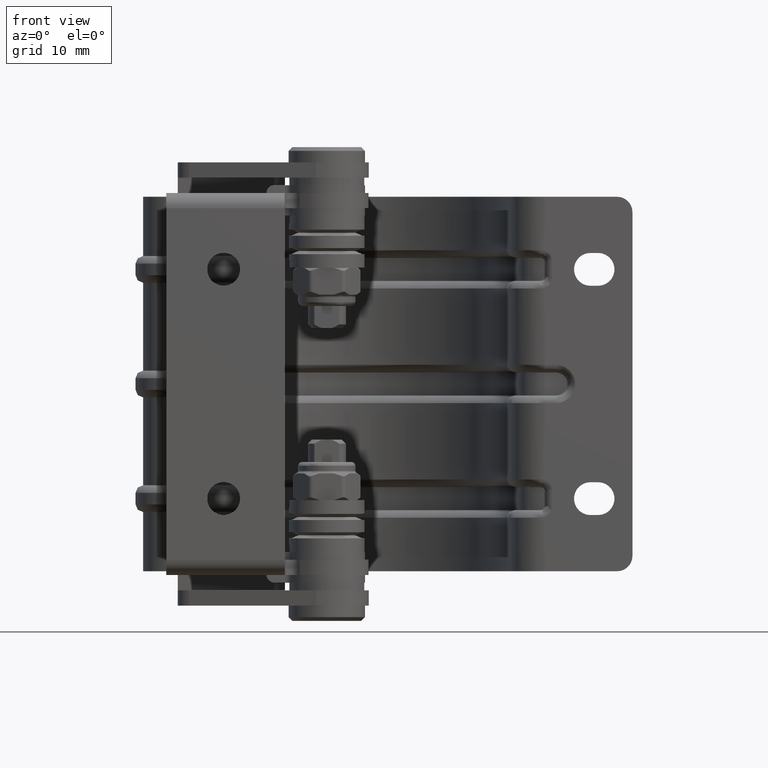
[diagram: clean part render]
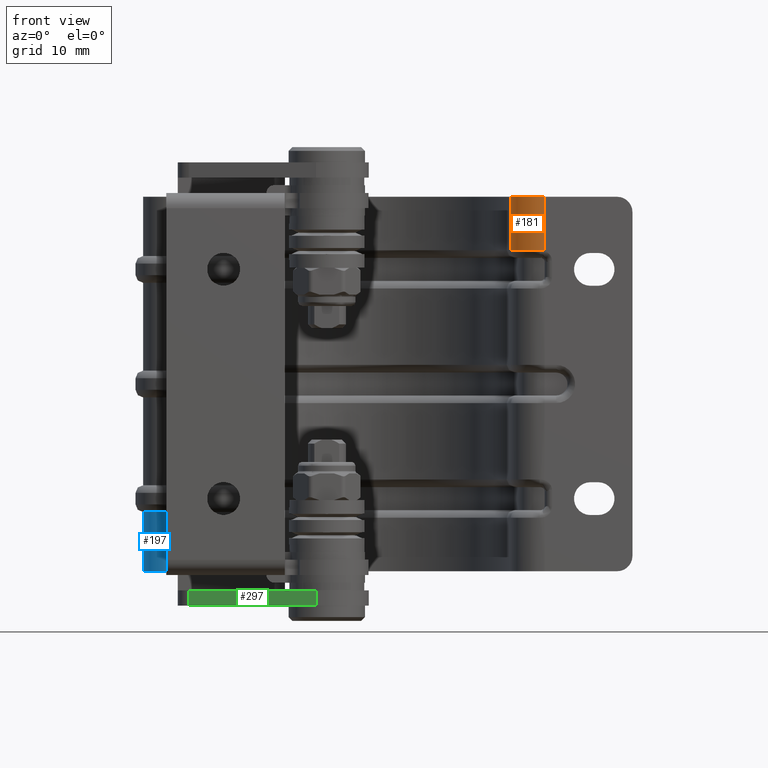
[diagram: same view with three faces highlighted in distinct colors, each labeled with its STEP entity id]
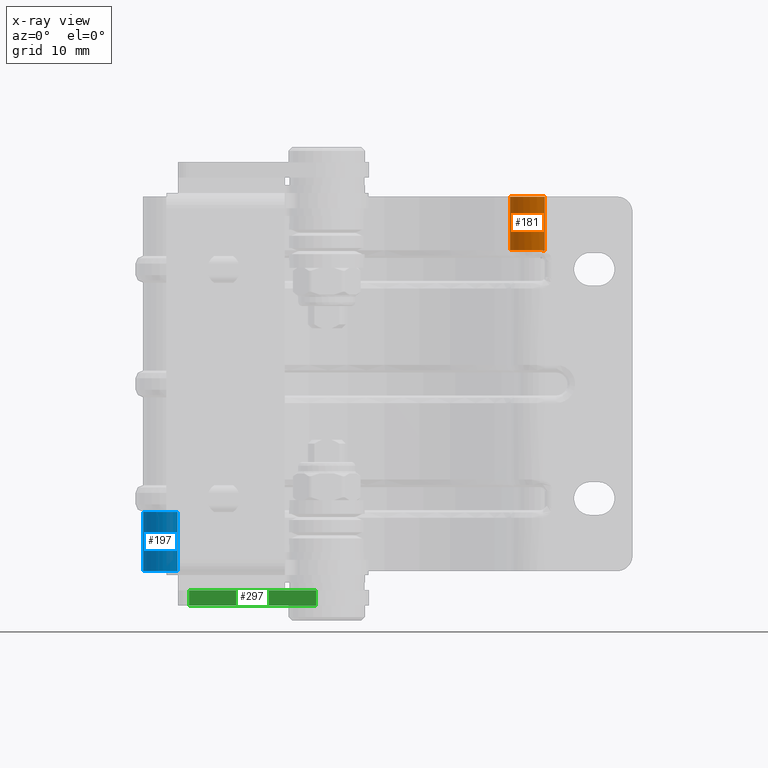
[diagram: x-ray of the same camera — body ghosted, the three highlighted faces saturated]
A machine part, front view with three faces highlighted in distinct colors.
The next image is the same camera in x-ray (body ghosted, the three faces saturated) — at least one of them is partly hidden behind the body in this view.
Their STEP definitions:

[orange] entity #181 — the highlighted cylindrical surface (edge-blend (fillet) strip) has radius 4.5 mm, axis along (0, 0, -1).
#181=ADVANCED_FACE('',(#1229),#1228,.T.);
#1228=CYLINDRICAL_SURFACE('',#5868,4.49999999922E+00);
#1229=FACE_OUTER_BOUND('',#5869,.T.);
#5865=CARTESIAN_POINT('',(9.75500000000E+02,1.49999999974E+00,-2.84999999976E+01));
#5866=DIRECTION('',(1.00000000000E+00,-0.00000000000E+00,-0.00000000000E+00));
#5867=DIRECTION('',(-0.00000000000E+00,-0.00000000000E+00,-1.00000000000E+00));
#5868=AXIS2_PLACEMENT_3D('',#5865,#5866,#5867);
#5869=EDGE_LOOP('',(#9214,#9215,#9216,#9217,#9218));
#9214=ORIENTED_EDGE('',*,*,#11175,.F.);
#9215=ORIENTED_EDGE('',*,*,#11176,.T.);
#9216=ORIENTED_EDGE('',*,*,#10986,.T.);
#9217=ORIENTED_EDGE('',*,*,#11177,.T.);
#9218=ORIENTED_EDGE('',*,*,#11178,.F.);
#10986=EDGE_CURVE('',#12306,#12313,#12320,.T.);
#11175=EDGE_CURVE('',#13585,#13586,#13587,.T.);
#11176=EDGE_CURVE('',#13585,#12306,#13593,.T.);
#11177=EDGE_CURVE('',#12313,#13599,#13600,.T.);
#11178=EDGE_CURVE('',#13586,#13599,#13606,.T.);
#12306=VERTEX_POINT('',#18942);
#12313=VERTEX_POINT('',#18947);
#12320=(BOUNDED_CURVE() B_SPLINE_CURVE(3,(#18952,#18953,#18954,#18955),.UNSPECIFIED.,.F.,.F.) B_SPLINE_CURVE_WITH_KNOTS((4,4),(0.00000000000E+00,6.50196050034E-04),.UNSPECIFIED.) CURVE() GEOMETRIC_REPRESENTATION_ITEM() RATIONAL_B_SPLINE_CURVE((1.00000000000E+00,1.00000000000E+00,1.00000000000E+00,1.00000000000E+00)) REPRESENTATION_ITEM('') );
#13585=VERTEX_POINT('',#19762);
#13586=VERTEX_POINT('',#19763);
#13587=LINE('',#19764,#19765);
#13593=CIRCLE('',#19770,4.49999999922E+00);
#13599=VERTEX_POINT('',#19771);
#13600=LINE('',#19772,#19773);
#13606=CIRCLE('',#19778,4.49999999922E+00);
#18942=CARTESIAN_POINT('',(-1.75000000000E+01,5.95384493331E+00,-2.78571428589E+01));
#18947=CARTESIAN_POINT('',(-1.74142135635E+01,5.99999999896E+00,-2.84999999976E+01));
#18952=CARTESIAN_POINT('',(-1.75000000000E+01,5.95384493331E+00,-2.78571428589E+01));
#18953=CARTESIAN_POINT('',(-1.75000000000E+01,5.98516011135E+00,-2.80741007780E+01));
#18954=CARTESIAN_POINT('',(-1.74723585377E+01,5.99999999896E+00,-2.82885529391E+01));
#18955=CARTESIAN_POINT('',(-1.74142135635E+01,5.99999999896E+00,-2.84999999976E+01));
#19762=CARTESIAN_POINT('',(-1.75000000000E+01,1.49999999974E+00,-2.39999999984E+01));
#19763=CARTESIAN_POINT('',(-2.45000000004E+01,1.49999999974E+00,-2.39999999984E+01));
#19764=CARTESIAN_POINT('',(-1.75000000000E+01,1.49999999974E+00,-2.39999999984E+01));
#19765=VECTOR('',#19766,7.00000000041E+00);
#19766=DIRECTION('',(-1.00000000000E+00,0.00000000000E+00,0.00000000000E+00));
#19767=CARTESIAN_POINT('',(-1.75000000000E+01,1.49999999974E+00,-2.84999999976E+01));
#19768=DIRECTION('',(-1.00000000000E+00,0.00000000000E+00,0.00000000000E+00));
#19769=DIRECTION('',(-0.00000000000E+00,-0.00000000000E+00,-1.00000000000E+00));
#19770=AXIS2_PLACEMENT_3D('',#19767,#19768,#19769);
#19771=CARTESIAN_POINT('',(-2.45000000004E+01,5.99999999896E+00,-2.84999999976E+01));
#19772=CARTESIAN_POINT('',(-1.74142135635E+01,5.99999999896E+00,-2.84999999976E+01));
#19773=VECTOR('',#19774,7.08578643687E+00);
#19774=DIRECTION('',(-1.00000000000E+00,0.00000000000E+00,0.00000000000E+00));
#19775=CARTESIAN_POINT('',(-2.45000000004E+01,1.49999999974E+00,-2.84999999976E+01));
#19776=DIRECTION('',(-1.00000000000E+00,-0.00000000000E+00,-0.00000000000E+00));
#19777=DIRECTION('',(-0.00000000000E+00,-0.00000000000E+00,1.00000000000E+00));
#19778=AXIS2_PLACEMENT_3D('',#19775,#19776,#19777);

[blue] entity #197 — the highlighted cylindrical surface (edge-blend (fillet) strip) has radius 4.5 mm, axis along (0, 0, -1).
#197=ADVANCED_FACE('',(#1393),#1392,.T.);
#1392=CYLINDRICAL_SURFACE('',#5952,4.49999999922E+00);
#1393=FACE_OUTER_BOUND('',#5953,.T.);
#5949=CARTESIAN_POINT('',(9.75500000000E+02,-9.00000000238E+00,1.95256249718E+01));
#5950=DIRECTION('',(1.00000000000E+00,-0.00000000000E+00,-0.00000000000E+00));
#5951=DIRECTION('',(-0.00000000000E+00,-0.00000000000E+00,-1.00000000000E+00));
#5952=AXIS2_PLACEMENT_3D('',#5949,#5950,#5951);
#5953=EDGE_LOOP('',(#9344,#9345,#9346,#9347));
#9344=ORIENTED_EDGE('',*,*,#11247,.T.);
#9345=ORIENTED_EDGE('',*,*,#11110,.F.);
#9346=ORIENTED_EDGE('',*,*,#11248,.F.);
#9347=ORIENTED_EDGE('',*,*,#11199,.T.);
#11110=EDGE_CURVE('',#13114,#13134,#13148,.T.);
#11199=EDGE_CURVE('',#13747,#13740,#13748,.T.);
#11247=EDGE_CURVE('',#13740,#13134,#14066,.T.);
#11248=EDGE_CURVE('',#13747,#13114,#14072,.T.);
#13114=VERTEX_POINT('',#19476);
#13134=VERTEX_POINT('',#19490);
#13148=CIRCLE('',#19503,4.49999999922E+00);
#13740=VERTEX_POINT('',#19859);
#13747=VERTEX_POINT('',#19863);
#13748=CIRCLE('',#19867,4.49999999922E+00);
#14066=LINE('',#20054,#20055);
#14072=LINE('',#20057,#20058);
#19476=CARTESIAN_POINT('',(1.67499999990E+01,-1.08837209322E+01,2.36123835224E+01));
#19490=CARTESIAN_POINT('',(1.67499999990E+01,-4.50000000316E+00,1.95256249718E+01));
#19500=CARTESIAN_POINT('',(1.67499999990E+01,-9.00000000238E+00,1.95256249718E+01));
#19501=DIRECTION('',(-1.00000000000E+00,0.00000000000E+00,0.00000000000E+00));
#19502=DIRECTION('',(-0.00000000000E+00,-0.00000000000E+00,-1.00000000000E+00));
#19503=AXIS2_PLACEMENT_3D('',#19500,#19501,#19502);
#19859=CARTESIAN_POINT('',(2.45000000004E+01,-4.50000000316E+00,1.95256249718E+01));
#19863=CARTESIAN_POINT('',(2.45000000004E+01,-1.08837209322E+01,2.36123835224E+01));
#19864=CARTESIAN_POINT('',(2.45000000004E+01,-9.00000000238E+00,1.95256249718E+01));
#19865=DIRECTION('',(-1.00000000000E+00,0.00000000000E+00,-0.00000000000E+00));
#19866=DIRECTION('',(0.00000000000E+00,1.00000000000E+00,-1.83690953073E-16));
#19867=AXIS2_PLACEMENT_3D('',#19864,#19865,#19866);
#20054=CARTESIAN_POINT('',(2.45000000004E+01,-4.50000000316E+00,1.95256249718E+01));
#20055=VECTOR('',#20056,7.75000000144E+00);
#20056=DIRECTION('',(-1.00000000000E+00,0.00000000000E+00,0.00000000000E+00));
#20057=CARTESIAN_POINT('',(2.45000000004E+01,-1.08837209322E+01,2.36123835224E+01));
#20058=VECTOR('',#20059,7.75000000144E+00);
#20059=DIRECTION('',(-1.00000000000E+00,0.00000000000E+00,0.00000000000E+00));

[green] entity #297 — the highlighted planar face has unit normal (-0.2573, -0.9663, 0).
#297=ADVANCED_FACE('',(#2404),#2403,.T.);
#2403=PLANE('',#6983);
#2404=FACE_OUTER_BOUND('',#6984,.T.);
#6980=CARTESIAN_POINT('',(2.67999999991E+01,5.75680121638E+00,-2.44951892660E-01));
#6981=DIRECTION('',(0.00000000000E+00,9.66338664416E-01,2.57273367557E-01));
#6982=DIRECTION('',(0.00000000000E+00,-2.57273367557E-01,9.66338664416E-01));
#6983=AXIS2_PLACEMENT_3D('',#6980,#6981,#6982);
#6984=EDGE_LOOP('',(#9792,#9793,#9794,#9795));
#9792=ORIENTED_EDGE('',*,*,#11495,.T.);
#9793=ORIENTED_EDGE('',*,*,#11494,.F.);
#9794=ORIENTED_EDGE('',*,*,#11486,.F.);
#9795=ORIENTED_EDGE('',*,*,#11496,.T.);
#11486=EDGE_CURVE('',#15647,#15654,#15655,.T.);
#11494=EDGE_CURVE('',#15654,#15701,#15708,.T.);
#11495=EDGE_CURVE('',#15714,#15701,#15715,.T.);
#11496=EDGE_CURVE('',#15647,#15714,#15721,.T.);
#15647=VERTEX_POINT('',#21158);
#15654=VERTEX_POINT('',#21163);
#15655=LINE('',#21164,#21165);
#15701=VERTEX_POINT('',#21194);
#15708=LINE('',#21199,#21200);
#15714=VERTEX_POINT('',#21202);
#15715=LINE('',#21203,#21204);
#15721=LINE('',#21206,#21207);
#21158=CARTESIAN_POINT('',(2.69999999991E+01,8.95477035158E-01,1.80145576745E+01));
#21163=CARTESIAN_POINT('',(2.69999999991E+01,5.31486265448E+00,1.41500352254E+00));
#21164=CARTESIAN_POINT('',(2.69999999991E+01,8.95477035454E-01,1.80145576745E+01));
#21165=VECTOR('',#21166,1.71777812099E+01);
#21166=DIRECTION('',(0.00000000000E+00,2.57273367557E-01,-9.66338664416E-01));
#21194=CARTESIAN_POINT('',(2.89999999996E+01,5.31486265448E+00,1.41500352254E+00));
#21199=CARTESIAN_POINT('',(2.69999999991E+01,5.31486265448E+00,1.41500352254E+00));
#21200=VECTOR('',#21201,2.00000000050E+00);
#21201=DIRECTION('',(1.00000000000E+00,0.00000000000E+00,0.00000000000E+00));
#21202=CARTESIAN_POINT('',(2.89999999996E+01,8.95477035158E-01,1.80145576745E+01));
#21203=CARTESIAN_POINT('',(2.89999999996E+01,8.95477035454E-01,1.80145576745E+01));
#21204=VECTOR('',#21205,1.71777812099E+01);
#21205=DIRECTION('',(0.00000000000E+00,2.57273367557E-01,-9.66338664416E-01));
#21206=CARTESIAN_POINT('',(2.69999999991E+01,8.95477035158E-01,1.80145576745E+01));
#21207=VECTOR('',#21208,2.00000000050E+00);
#21208=DIRECTION('',(1.00000000000E+00,0.00000000000E+00,0.00000000000E+00));